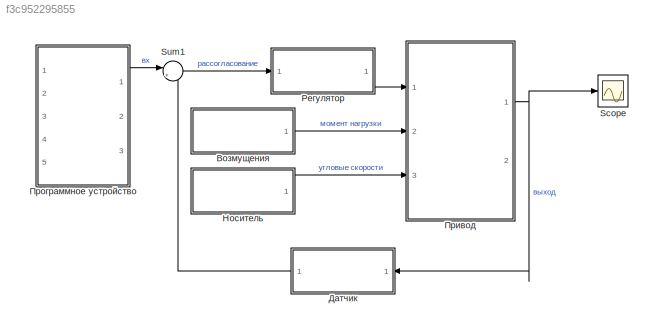
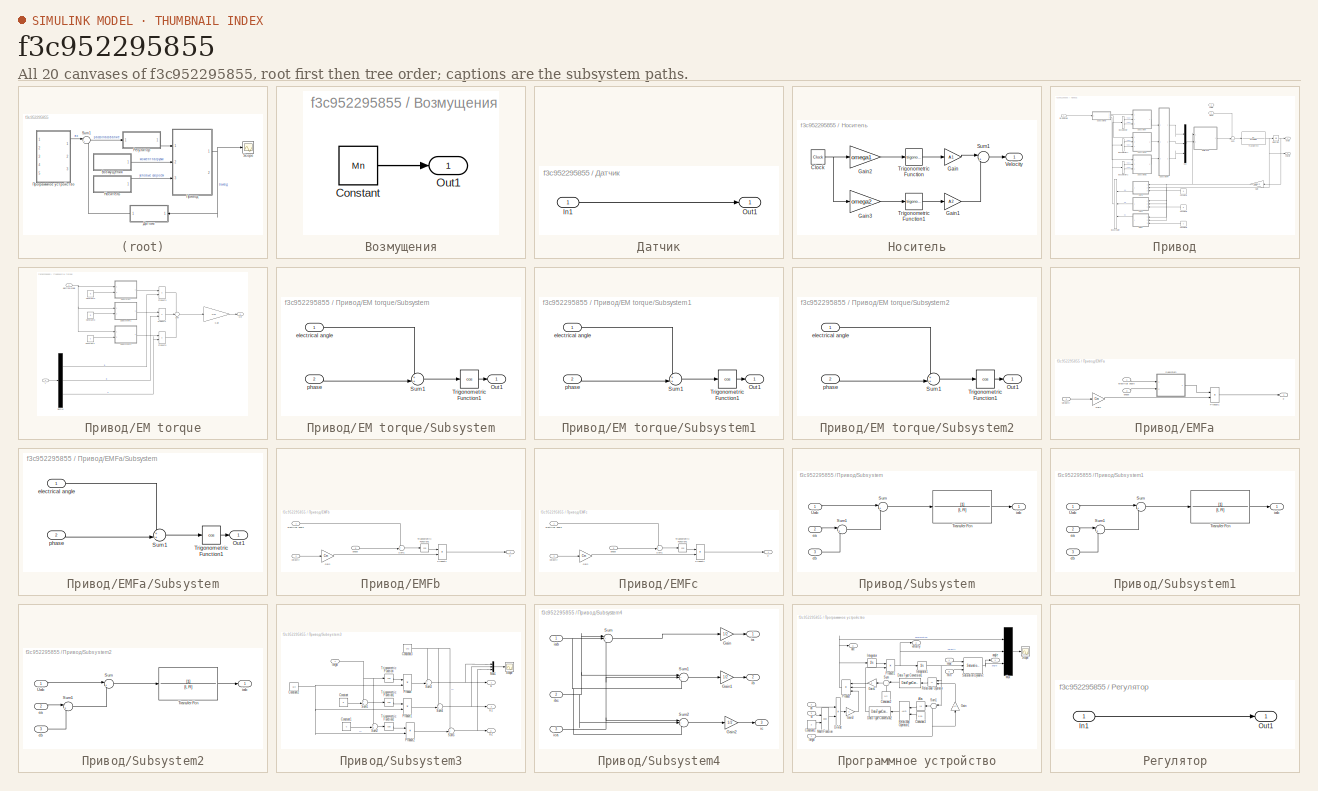
[diagram: thumbnail index - all 20 canvases of the model, root first then tree order]
MODEL slx_f3c952295855
KIND model
CONFIG AbsTol = auto
CONFIG EnableMultiTasking = off
CONFIG FixedStep = auto
CONFIG MaxStep = auto
CONFIG MinStep = auto
CONFIG RelTol = 1e-3
CONFIG SampleTimeConstraint = Unconstrained
CONFIG Solver = VariableStepAuto
CONFIG SolverName = VariableStepAuto
CONFIG StartTime = 0.0
CONFIG StopTime = 3
WORKSPACE source: MAT-file member
WORKSPACE A1 = 1
BLOCK [Scope] Scope
  Floating = off
  NumInputPorts = 1
  Ports = [1]
  ScopeSpecificationString = Simulink.scopes.TimeScopeBlockCfg('CurrentConfiguration', extmgr.ConfigurationSet(extmgr.Configuration('Core','General UI',true),extmgr.Configuration('Core','Source UI',true),extmgr.Configuration('Sources','WiredSimulink',true),extmgr.Configuration('Visuals','Time Domain',true,'SerializedDisplays',{struct('MinYLimReal','-87.42543','MaxYLimReal','179.91334','YLabelReal','','MinYLimMag','0.00000','M...<+1411ch>
BLOCK [Sum] Sum1
  IconShape = round
  InputSameDT = off
  Inputs = |+-
  OutDataTypeStr = Inherit: Inherit via internal rule
  Ports = [2, 1]
  SaturateOnIntegerOverflow = off
BLOCK [SubSystem] Возмущения
  Ports = [0, 1]
  RequestExecContextInheritance = off
BLOCK [Constant] Возмущения/Constant
  Value = Mn
BLOCK [Outport] Возмущения/Out1
  IconDisplay = Port number
BLOCK [SubSystem] Датчик
  Ports = [1, 1]
  RequestExecContextInheritance = off
BLOCK [Inport] Датчик/In1
  IconDisplay = Port number
BLOCK [Outport] Датчик/Out1
  IconDisplay = Port number
BLOCK [SubSystem] Носитель
  Ports = [0, 1]
  RequestExecContextInheritance = off
BLOCK [Clock] Носитель/Clock
BLOCK [Gain] Носитель/Gain
  Gain = A1
  OutDataTypeStr = Inherit: Inherit via internal rule
  ParamDataTypeStr = Inherit: Inherit via internal rule
  SaturateOnIntegerOverflow = off
BLOCK [Gain] Носитель/Gain1
  Gain = A2
  OutDataTypeStr = Inherit: Inherit via internal rule
  ParamDataTypeStr = Inherit: Inherit via internal rule
  SaturateOnIntegerOverflow = off
BLOCK [Gain] Носитель/Gain2
  Gain = omega1
  OutDataTypeStr = Inherit: Inherit via internal rule
  ParamDataTypeStr = Inherit: Inherit via internal rule
  SaturateOnIntegerOverflow = off
BLOCK [Gain] Носитель/Gain3
  Gain = omega2
  OutDataTypeStr = Inherit: Inherit via internal rule
  ParamDataTypeStr = Inherit: Inherit via internal rule
  SaturateOnIntegerOverflow = off
BLOCK [Sum] Носитель/Sum1
  IconShape = round
  InputSameDT = off
  Inputs = |++
  OutDataTypeStr = Inherit: Inherit via internal rule
  Ports = [2, 1]
  SaturateOnIntegerOverflow = off
BLOCK [Trigonometry] Носитель/Trigonometric Function
  Ports = [1, 1]
BLOCK [Trigonometry] Носитель/Trigonometric Function1
  Ports = [1, 1]
BLOCK [Outport] Носитель/Velocity
  IconDisplay = Port number
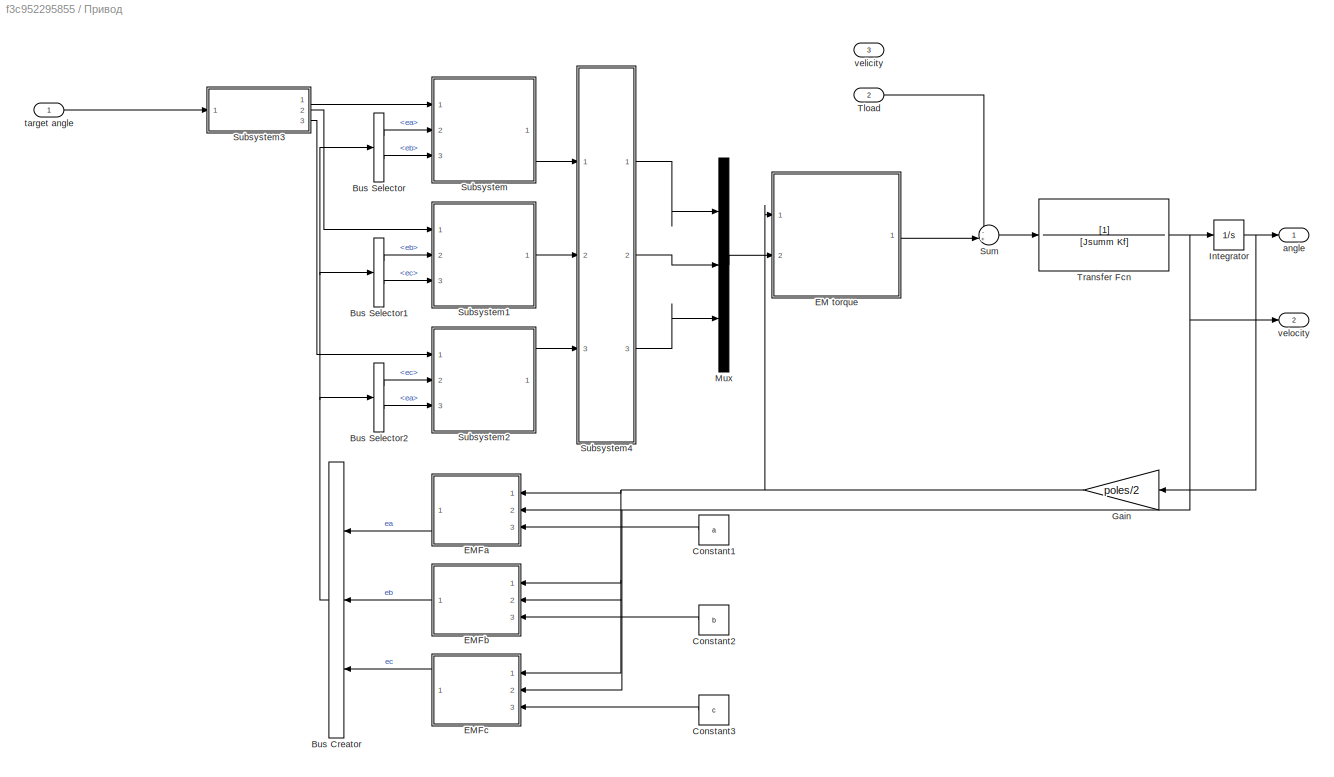
BLOCK [SubSystem] Привод
  Ports = [3, 2]
  RequestExecContextInheritance = off
BLOCK [BusCreator] Привод/Bus Creator
  DisplayOption = bar
  InheritFromInputs = on
  Inputs = 3
  Ports = [3, 1]
BLOCK [BusSelector] Привод/Bus Selector
  OutputAsBus = off
  OutputSignals = ea,eb
  Ports = [1, 2]
BLOCK [BusSelector] Привод/Bus Selector1
  OutputAsBus = off
  OutputSignals = eb,ec
  Ports = [1, 2]
BLOCK [BusSelector] Привод/Bus Selector2
  OutputAsBus = off
  OutputSignals = ec,ea
  Ports = [1, 2]
BLOCK [Constant] Привод/Constant1
  Value = a
BLOCK [Constant] Привод/Constant2
  Value = b
BLOCK [Constant] Привод/Constant3
  Value = c
BLOCK [SubSystem] Привод/EM torque
  Ports = [2, 1]
  RequestExecContextInheritance = off
BLOCK [Constant] Привод/EM torque/Constant2
  Value = a
BLOCK [Constant] Привод/EM torque/Constant3
  Value = b
BLOCK [Constant] Привод/EM torque/Constant4
  Value = c
BLOCK [Demux] Привод/EM torque/Demux
  DisplayOption = bar
  Outputs = 3
  Ports = [1, 3]
BLOCK [Gain] Привод/EM torque/Gain
  Gain = Cm
  OutDataTypeStr = Inherit: Inherit via internal rule
  ParamDataTypeStr = Inherit: Inherit via internal rule
  SaturateOnIntegerOverflow = off
BLOCK [Inport] Привод/EM torque/I
  IconDisplay = Port number
  Port = 2
BLOCK [Outport] Привод/EM torque/Me
  IconDisplay = Port number
BLOCK [Product] Привод/EM torque/Product3
  InputSameDT = off
  OutDataTypeStr = Inherit: Inherit via internal rule
  Ports = [2, 1]
  RndMeth = Floor
  SaturateOnIntegerOverflow = off
BLOCK [Product] Привод/EM torque/Product4
  InputSameDT = off
  OutDataTypeStr = Inherit: Inherit via internal rule
  Ports = [2, 1]
  RndMeth = Floor
  SaturateOnIntegerOverflow = off
BLOCK [Product] Привод/EM torque/Product5
  InputSameDT = off
  OutDataTypeStr = Inherit: Inherit via internal rule
  Ports = [2, 1]
  RndMeth = Floor
  SaturateOnIntegerOverflow = off
BLOCK [SubSystem] Привод/EM torque/Subsystem
  Ports = [2, 1]
  RequestExecContextInheritance = off
BLOCK [Outport] Привод/EM torque/Subsystem/Out1
  IconDisplay = Port number
BLOCK [Sum] Привод/EM torque/Subsystem/Sum1
  IconShape = round
  InputSameDT = off
  Inputs = ++|
  OutDataTypeStr = Inherit: Inherit via internal rule
  Ports = [2, 1]
  SaturateOnIntegerOverflow = off
BLOCK [Trigonometry] Привод/EM torque/Subsystem/Trigonometric Function1
  Operator = cos
  Ports = [1, 1]
BLOCK [Inport] Привод/EM torque/Subsystem/electrical angle
  IconDisplay = Port number
BLOCK [Inport] Привод/EM torque/Subsystem/phase
  IconDisplay = Port number
  Port = 2
BLOCK [SubSystem] Привод/EM torque/Subsystem1
  Ports = [2, 1]
  RequestExecContextInheritance = off
BLOCK [Outport] Привод/EM torque/Subsystem1/Out1
  IconDisplay = Port number
BLOCK [Sum] Привод/EM torque/Subsystem1/Sum1
  IconShape = round
  InputSameDT = off
  Inputs = ++|
  OutDataTypeStr = Inherit: Inherit via internal rule
  Ports = [2, 1]
  SaturateOnIntegerOverflow = off
BLOCK [Trigonometry] Привод/EM torque/Subsystem1/Trigonometric Function1
  Operator = cos
  Ports = [1, 1]
BLOCK [Inport] Привод/EM torque/Subsystem1/electrical angle
  IconDisplay = Port number
BLOCK [Inport] Привод/EM torque/Subsystem1/phase
  IconDisplay = Port number
  Port = 2
BLOCK [SubSystem] Привод/EM torque/Subsystem2
  Ports = [2, 1]
  RequestExecContextInheritance = off
BLOCK [Outport] Привод/EM torque/Subsystem2/Out1
  IconDisplay = Port number
BLOCK [Sum] Привод/EM torque/Subsystem2/Sum1
  IconShape = round
  InputSameDT = off
  Inputs = ++|
  OutDataTypeStr = Inherit: Inherit via internal rule
  Ports = [2, 1]
  SaturateOnIntegerOverflow = off
BLOCK [Trigonometry] Привод/EM torque/Subsystem2/Trigonometric Function1
  Operator = cos
  Ports = [1, 1]
BLOCK [Inport] Привод/EM torque/Subsystem2/electrical angle
  IconDisplay = Port number
BLOCK [Inport] Привод/EM torque/Subsystem2/phase
  IconDisplay = Port number
  Port = 2
BLOCK [Sum] Привод/EM torque/Sum
  IconShape = round
  InputSameDT = off
  Inputs = +++
  OutDataTypeStr = Inherit: Inherit via internal rule
  Ports = [3, 1]
  SaturateOnIntegerOverflow = off
BLOCK [Inport] Привод/EM torque/electrical angle
  IconDisplay = Port number
BLOCK [SubSystem] Привод/EMFa
  Ports = [3, 1]
  RequestExecContextInheritance = off
BLOCK [Gain] Привод/EMFa/Gain
  Gain = Cm
  OutDataTypeStr = Inherit: Inherit via internal rule
  ParamDataTypeStr = Inherit: Inherit via internal rule
  SaturateOnIntegerOverflow = off
BLOCK [Product] Привод/EMFa/Product1
  InputSameDT = off
  OutDataTypeStr = Inherit: Inherit via internal rule
  Ports = [2, 1]
  RndMeth = Floor
  SaturateOnIntegerOverflow = off
BLOCK [SubSystem] Привод/EMFa/Subsystem
  Ports = [2, 1]
  RequestExecContextInheritance = off
BLOCK [Outport] Привод/EMFa/Subsystem/Out1
  IconDisplay = Port number
BLOCK [Sum] Привод/EMFa/Subsystem/Sum1
  IconShape = round
  InputSameDT = off
  Inputs = ++|
  OutDataTypeStr = Inherit: Inherit via internal rule
  Ports = [2, 1]
  SaturateOnIntegerOverflow = off
BLOCK [Trigonometry] Привод/EMFa/Subsystem/Trigonometric Function1
  Operator = cos
  Ports = [1, 1]
BLOCK [Inport] Привод/EMFa/Subsystem/electrical angle
  IconDisplay = Port number
BLOCK [Inport] Привод/EMFa/Subsystem/phase
  IconDisplay = Port number
  Port = 2
BLOCK [Outport] Привод/EMFa/e
  IconDisplay = Port number
BLOCK [Inport] Привод/EMFa/electrical angle
  IconDisplay = Port number
BLOCK [Inport] Привод/EMFa/phase
  IconDisplay = Port number
  Port = 3
BLOCK [Inport] Привод/EMFa/velocity
  IconDisplay = Port number
  Port = 2
BLOCK [SubSystem] Привод/EMFb
  Ports = [3, 1]
  RequestExecContextInheritance = off
BLOCK [Gain] Привод/EMFb/Gain
  Gain = Cm
  OutDataTypeStr = Inherit: Inherit via internal rule
  ParamDataTypeStr = Inherit: Inherit via internal rule
  SaturateOnIntegerOverflow = off
BLOCK [Product] Привод/EMFb/Product1
  InputSameDT = off
  OutDataTypeStr = Inherit: Inherit via internal rule
  Ports = [2, 1]
  RndMeth = Floor
  SaturateOnIntegerOverflow = off
BLOCK [Sum] Привод/EMFb/Sum1
  IconShape = round
  InputSameDT = off
  Inputs = ++|
  OutDataTypeStr = Inherit: Inherit via internal rule
  Ports = [2, 1]
  SaturateOnIntegerOverflow = off
BLOCK [Trigonometry] Привод/EMFb/Trigonometric Function1
  Operator = cos
  Ports = [1, 1]
BLOCK [Outport] Привод/EMFb/e
  IconDisplay = Port number
BLOCK [Inport] Привод/EMFb/electrical angle
  IconDisplay = Port number
BLOCK [Inport] Привод/EMFb/phase
  IconDisplay = Port number
  Port = 3
BLOCK [Inport] Привод/EMFb/velocity
  IconDisplay = Port number
  Port = 2
BLOCK [SubSystem] Привод/EMFc
  Ports = [3, 1]
  RequestExecContextInheritance = off
BLOCK [Gain] Привод/EMFc/Gain
  Gain = Cm
  OutDataTypeStr = Inherit: Inherit via internal rule
  ParamDataTypeStr = Inherit: Inherit via internal rule
  SaturateOnIntegerOverflow = off
BLOCK [Product] Привод/EMFc/Product1
  InputSameDT = off
  OutDataTypeStr = Inherit: Inherit via internal rule
  Ports = [2, 1]
  RndMeth = Floor
  SaturateOnIntegerOverflow = off
BLOCK [Sum] Привод/EMFc/Sum1
  IconShape = round
  InputSameDT = off
  Inputs = ++|
  OutDataTypeStr = Inherit: Inherit via internal rule
  Ports = [2, 1]
  SaturateOnIntegerOverflow = off
BLOCK [Trigonometry] Привод/EMFc/Trigonometric Function1
  Operator = cos
  Ports = [1, 1]
BLOCK [Outport] Привод/EMFc/e
  IconDisplay = Port number
BLOCK [Inport] Привод/EMFc/electrical angle
  IconDisplay = Port number
BLOCK [Inport] Привод/EMFc/phase
  IconDisplay = Port number
  Port = 3
BLOCK [Inport] Привод/EMFc/velocity
  IconDisplay = Port number
  Port = 2
BLOCK [Gain] Привод/Gain
  Gain = poles/2
  OutDataTypeStr = Inherit: Inherit via internal rule
  ParamDataTypeStr = Inherit: Inherit via internal rule
  SaturateOnIntegerOverflow = off
BLOCK [Integrator] Привод/Integrator
  Ports = [1, 1]
BLOCK [Mux] Привод/Mux
  DisplayOption = bar
  Inputs = 3
  Ports = [3, 1]
BLOCK [SubSystem] Привод/Subsystem
  Ports = [3, 1]
  RequestExecContextInheritance = off
BLOCK [Sum] Привод/Subsystem/Sum
  IconShape = round
  InputSameDT = off
  Inputs = |+-
  OutDataTypeStr = Inherit: Inherit via internal rule
  Ports = [2, 1]
  SaturateOnIntegerOverflow = off
BLOCK [Sum] Привод/Subsystem/Sum1
  IconShape = round
  InputSameDT = off
  Inputs = |+-
  OutDataTypeStr = Inherit: Inherit via internal rule
  Ports = [2, 1]
  SaturateOnIntegerOverflow = off
BLOCK [TransferFcn] Привод/Subsystem/Transfer Fcn
  Denominator = [L R]
BLOCK [Inport] Привод/Subsystem/Uab
  IconDisplay = Port number
BLOCK [Inport] Привод/Subsystem/ea 
  IconDisplay = Port number
  Port = 2
BLOCK [Inport] Привод/Subsystem/eb
  IconDisplay = Port number
  Port = 3
BLOCK [Outport] Привод/Subsystem/iab
  IconDisplay = Port number
BLOCK [SubSystem] Привод/Subsystem1
  Ports = [3, 1]
  RequestExecContextInheritance = off
BLOCK [Sum] Привод/Subsystem1/Sum
  IconShape = round
  InputSameDT = off
  Inputs = |+-
  OutDataTypeStr = Inherit: Inherit via internal rule
  Ports = [2, 1]
  SaturateOnIntegerOverflow = off
BLOCK [Sum] Привод/Subsystem1/Sum1
  IconShape = round
  InputSameDT = off
  Inputs = |+-
  OutDataTypeStr = Inherit: Inherit via internal rule
  Ports = [2, 1]
  SaturateOnIntegerOverflow = off
BLOCK [TransferFcn] Привод/Subsystem1/Transfer Fcn
  Denominator = [L R]
BLOCK [Inport] Привод/Subsystem1/Uab
  IconDisplay = Port number
BLOCK [Inport] Привод/Subsystem1/ea 
  IconDisplay = Port number
  Port = 2
BLOCK [Inport] Привод/Subsystem1/eb
  IconDisplay = Port number
  Port = 3
BLOCK [Outport] Привод/Subsystem1/iab
  IconDisplay = Port number
BLOCK [SubSystem] Привод/Subsystem2
  Ports = [3, 1]
  RequestExecContextInheritance = off
BLOCK [Sum] Привод/Subsystem2/Sum
  IconShape = round
  InputSameDT = off
  Inputs = |+-
  OutDataTypeStr = Inherit: Inherit via internal rule
  Ports = [2, 1]
  SaturateOnIntegerOverflow = off
BLOCK [Sum] Привод/Subsystem2/Sum1
  IconShape = round
  InputSameDT = off
  Inputs = |+-
  OutDataTypeStr = Inherit: Inherit via internal rule
  Ports = [2, 1]
  SaturateOnIntegerOverflow = off
BLOCK [TransferFcn] Привод/Subsystem2/Transfer Fcn
  Denominator = [L R]
BLOCK [Inport] Привод/Subsystem2/Uab
  IconDisplay = Port number
BLOCK [Inport] Привод/Subsystem2/ea 
  IconDisplay = Port number
  Port = 2
BLOCK [Inport] Привод/Subsystem2/eb
  IconDisplay = Port number
  Port = 3
BLOCK [Outport] Привод/Subsystem2/iab
  IconDisplay = Port number
BLOCK [SubSystem] Привод/Subsystem3
  Ports = [1, 3]
  RequestExecContextInheritance = off
BLOCK [Constant] Привод/Subsystem3/Constant
  Value = b
BLOCK [Constant] Привод/Subsystem3/Constant1
  Value = c
BLOCK [Constant] Привод/Subsystem3/Constant2
  Value = U/2
BLOCK [Constant] Привод/Subsystem3/Constant3
  Value = U/2
BLOCK [Mux] Привод/Subsystem3/Mux1
  DisplayOption = bar
  Inputs = 3
  Ports = [3, 1]
BLOCK [Product] Привод/Subsystem3/Product
  InputSameDT = off
  OutDataTypeStr = Inherit: Inherit via internal rule
  Ports = [2, 1]
  RndMeth = Floor
  SaturateOnIntegerOverflow = off
BLOCK [Product] Привод/Subsystem3/Product1
  InputSameDT = off
  OutDataTypeStr = Inherit: Inherit via internal rule
  Ports = [2, 1]
  RndMeth = Floor
  SaturateOnIntegerOverflow = off
BLOCK [Product] Привод/Subsystem3/Product2
  InputSameDT = off
  OutDataTypeStr = Inherit: Inherit via internal rule
  Ports = [2, 1]
  RndMeth = Floor
  SaturateOnIntegerOverflow = off
BLOCK [Scope] Привод/Subsystem3/Scope
  Floating = off
  NumInputPorts = 1
  Ports = [1]
  ScopeSpecificationString = Simulink.scopes.TimeScopeBlockCfg('CurrentConfiguration', extmgr.ConfigurationSet(extmgr.Configuration('Core','General UI',true),extmgr.Configuration('Core','Source UI',true),extmgr.Configuration('Sources','WiredSimulink',true,'DataLoggingVariableName','ScopeData1'),extmgr.Configuration('Visuals','Time Domain',true,'SerializedDisplays',{struct('MinYLimReal','-0.25','MaxYLimReal','2.25','YLabelReal...<+1435ch>
BLOCK [Sum] Привод/Subsystem3/Sum1
  IconShape = round
  InputSameDT = off
  Inputs = ++|
  OutDataTypeStr = Inherit: Inherit via internal rule
  Ports = [2, 1]
  SaturateOnIntegerOverflow = off
BLOCK [Sum] Привод/Subsystem3/Sum2
  IconShape = round
  InputSameDT = off
  Inputs = ++|
  OutDataTypeStr = Inherit: Inherit via internal rule
  Ports = [2, 1]
  SaturateOnIntegerOverflow = off
BLOCK [Sum] Привод/Subsystem3/Sum3
  IconShape = round
  InputSameDT = off
  Inputs = ++|
  OutDataTypeStr = Inherit: Inherit via internal rule
  Ports = [2, 1]
  SaturateOnIntegerOverflow = off
BLOCK [Sum] Привод/Subsystem3/Sum4
  IconShape = round
  InputSameDT = off
  Inputs = ++|
  OutDataTypeStr = Inherit: Inherit via internal rule
  Ports = [2, 1]
  SaturateOnIntegerOverflow = off
BLOCK [Sum] Привод/Subsystem3/Sum5
  IconShape = round
  InputSameDT = off
  Inputs = ++|
  OutDataTypeStr = Inherit: Inherit via internal rule
  Ports = [2, 1]
  SaturateOnIntegerOverflow = off
BLOCK [Trigonometry] Привод/Subsystem3/Trigonometric Function
  Operator = cos
  Ports = [1, 1]
BLOCK [Trigonometry] Привод/Subsystem3/Trigonometric Function1
  Operator = cos
  Ports = [1, 1]
BLOCK [Trigonometry] Привод/Subsystem3/Trigonometric Function2
  Operator = cos
  Ports = [1, 1]
BLOCK [Inport] Привод/Subsystem3/target
  IconDisplay = Port number
BLOCK [Outport] Привод/Subsystem3/u 
  IconDisplay = Port number
BLOCK [Outport] Привод/Subsystem3/u 1
  IconDisplay = Port number
  Port = 2
BLOCK [Outport] Привод/Subsystem3/u 2
  IconDisplay = Port number
  Port = 3
BLOCK [SubSystem] Привод/Subsystem4
  Ports = [3, 3]
  RequestExecContextInheritance = off
BLOCK [Gain] Привод/Subsystem4/Gain
  Gain = 1/2
  OutDataTypeStr = Inherit: Inherit via internal rule
  ParamDataTypeStr = Inherit: Inherit via internal rule
  SaturateOnIntegerOverflow = off
BLOCK [Gain] Привод/Subsystem4/Gain1
  Gain = 1/2
  OutDataTypeStr = Inherit: Inherit via internal rule
  ParamDataTypeStr = Inherit: Inherit via internal rule
  SaturateOnIntegerOverflow = off
BLOCK [Gain] Привод/Subsystem4/Gain2
  Gain = 1/2
  OutDataTypeStr = Inherit: Inherit via internal rule
  ParamDataTypeStr = Inherit: Inherit via internal rule
  SaturateOnIntegerOverflow = off
BLOCK [Sum] Привод/Subsystem4/Sum
  IconShape = round
  InputSameDT = off
  Inputs = |+--
  OutDataTypeStr = Inherit: Inherit via internal rule
  Ports = [3, 1]
  SaturateOnIntegerOverflow = off
BLOCK [Sum] Привод/Subsystem4/Sum1
  IconShape = round
  InputSameDT = off
  Inputs = |+--
  OutDataTypeStr = Inherit: Inherit via internal rule
  Ports = [3, 1]
  SaturateOnIntegerOverflow = off
BLOCK [Sum] Привод/Subsystem4/Sum2
  IconShape = round
  InputSameDT = off
  Inputs = |+--
  OutDataTypeStr = Inherit: Inherit via internal rule
  Ports = [3, 1]
  SaturateOnIntegerOverflow = off
BLOCK [Outport] Привод/Subsystem4/ia
  IconDisplay = Port number
BLOCK [Inport] Привод/Subsystem4/iab
  IconDisplay = Port number
BLOCK [Outport] Привод/Subsystem4/ib
  IconDisplay = Port number
  Port = 2
BLOCK [Inport] Привод/Subsystem4/ibc 
  IconDisplay = Port number
  Port = 2
BLOCK [Outport] Привод/Subsystem4/ic
  IconDisplay = Port number
  Port = 3
BLOCK [Inport] Привод/Subsystem4/ica
  IconDisplay = Port number
  Port = 3
BLOCK [Sum] Привод/Sum
  IconShape = round
  InputSameDT = off
  Inputs = -+|
  OutDataTypeStr = Inherit: Inherit via internal rule
  Ports = [2, 1]
  SaturateOnIntegerOverflow = off
BLOCK [Inport] Привод/Tload
  IconDisplay = Port number
  Port = 2
BLOCK [TransferFcn] Привод/Transfer Fcn
  Denominator = [Jsumm Kf]
BLOCK [Outport] Привод/angle
  IconDisplay = Port number
BLOCK [Inport] Привод/target angle
  IconDisplay = Port number
BLOCK [Inport] Привод/velicity
  IconDisplay = Port number
  Port = 3
BLOCK [Outport] Привод/velocity
  IconDisplay = Port number
  Port = 2
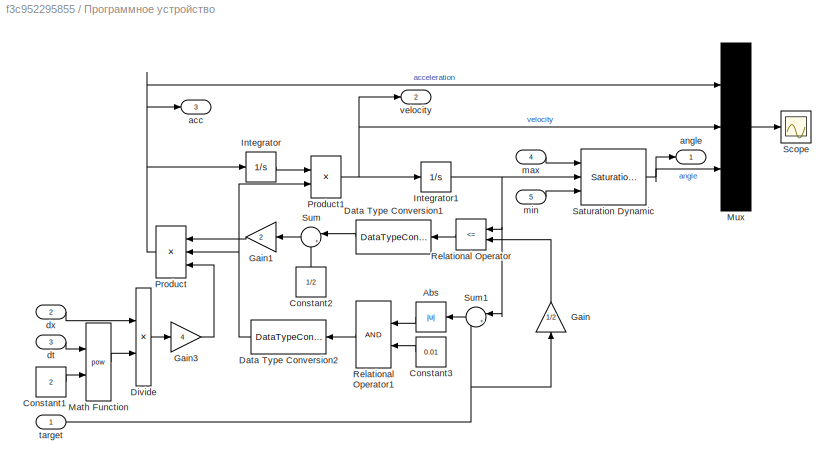
BLOCK [SubSystem] Программное устройство
  Ports = [5, 3]
  RequestExecContextInheritance = off
BLOCK [Abs] Программное устройство/Abs
  SaturateOnIntegerOverflow = off
BLOCK [Constant] Программное устройство/Constant1
  Value = 2
BLOCK [Constant] Программное устройство/Constant2
  Value = 1/2
BLOCK [Constant] Программное устройство/Constant3
  Value = 0.01
BLOCK [DataTypeConversion] Программное устройство/Data Type Conversion1
  RndMeth = Floor
  SaturateOnIntegerOverflow = off
BLOCK [DataTypeConversion] Программное устройство/Data Type Conversion2
  RndMeth = Floor
  SaturateOnIntegerOverflow = off
BLOCK [Product] Программное устройство/Divide
  InputSameDT = off
  Inputs = */
  OutDataTypeStr = Inherit: Inherit via internal rule
  Ports = [2, 1]
  RndMeth = Floor
  SaturateOnIntegerOverflow = off
BLOCK [Gain] Программное устройство/Gain
  Gain = 1/2
  OutDataTypeStr = Inherit: Inherit via internal rule
  ParamDataTypeStr = Inherit: Inherit via internal rule
  SaturateOnIntegerOverflow = off
BLOCK [Gain] Программное устройство/Gain1
  Gain = 2
  OutDataTypeStr = Inherit: Inherit via internal rule
  ParamDataTypeStr = Inherit: Inherit via internal rule
  SaturateOnIntegerOverflow = off
BLOCK [Gain] Программное устройство/Gain3
  Gain = 4
  OutDataTypeStr = Inherit: Inherit via internal rule
  ParamDataTypeStr = Inherit: Inherit via internal rule
  SaturateOnIntegerOverflow = off
BLOCK [Integrator] Программное устройство/Integrator
  Ports = [1, 1]
BLOCK [Integrator] Программное устройство/Integrator1
  Ports = [1, 1]
BLOCK [Math] Программное устройство/Math Function
  Operator = pow
  Ports = [2, 1]
BLOCK [Mux] Программное устройство/Mux
  DisplayOption = bar
  Inputs = 3
  Ports = [3, 1]
BLOCK [Product] Программное устройство/Product
  InputSameDT = off
  Inputs = 3
  OutDataTypeStr = Inherit: Inherit via internal rule
  Ports = [3, 1]
  RndMeth = Floor
  SaturateOnIntegerOverflow = off
BLOCK [Product] Программное устройство/Product1
  InputSameDT = off
  OutDataTypeStr = Inherit: Inherit via internal rule
  Ports = [2, 1]
  RndMeth = Floor
  SaturateOnIntegerOverflow = off
BLOCK [RelationalOperator] Программное устройство/Relational Operator
  InputSameDT = off
  Operator = <=
  OutDataTypeStr = boolean
  Ports = [2, 1]
  RndMeth = Simplest
BLOCK [RelationalOperator] Программное устройство/Relational Operator1
  InputSameDT = off
  OutDataTypeStr = boolean
  Ports = [2, 1]
  RndMeth = Simplest
BLOCK [Reference] Программное устройство/Saturation Dynamic  REF=simulink/Discontinuities/Saturation
Dynamic
  Ports = [3, 1]
  SourceBlock = simulink/Discontinuities/Saturation\nDynamic
  SourceProductBaseCode = SL
  SourceProductName = Simulink
  SourceType = Saturation Dynamic
BLOCK [Scope] Программное устройство/Scope
  Floating = off
  NumInputPorts = 1
  Ports = [1]
  ScopeSpecificationString = Simulink.scopes.TimeScopeBlockCfg('CurrentConfiguration', extmgr.ConfigurationSet(extmgr.Configuration('Core','General UI',true,'FigureColor',[0 0 0]),extmgr.Configuration('Core','Source UI',true),extmgr.Configuration('Sources','WiredSimulink',true,'DataLoggingVariableName','ScopeData1'),extmgr.Configuration('Visuals','Time Domain',true,'SerializedDisplays',{struct('MinYLimReal','-1250.00000','Max...<+1621ch>
BLOCK [Sum] Программное устройство/Sum
  IconShape = round
  InputSameDT = off
  Inputs = |+-
  OutDataTypeStr = Inherit: Inherit via internal rule
  Ports = [2, 1]
  SaturateOnIntegerOverflow = off
BLOCK [Sum] Программное устройство/Sum1
  IconShape = round
  InputSameDT = off
  Inputs = |+-
  OutDataTypeStr = Inherit: Inherit via internal rule
  Ports = [2, 1]
  SaturateOnIntegerOverflow = off
BLOCK [Outport] Программное устройство/acc
  IconDisplay = Port number
  Port = 3
BLOCK [Outport] Программное устройство/angle
  IconDisplay = Port number
BLOCK [Inport] Программное устройство/dt
  IconDisplay = Port number
  Port = 3
BLOCK [Inport] Программное устройство/dx 
  IconDisplay = Port number
  Port = 2
BLOCK [Inport] Программное устройство/max
  IconDisplay = Port number
  Port = 4
BLOCK [Inport] Программное устройство/min
  IconDisplay = Port number
  Port = 5
BLOCK [Inport] Программное устройство/target
  IconDisplay = Port number
BLOCK [Outport] Программное устройство/velocity
  IconDisplay = Port number
  Port = 2
BLOCK [SubSystem] Регулятор
  Ports = [1, 1]
  RequestExecContextInheritance = off
BLOCK [Inport] Регулятор/In1
  IconDisplay = Port number
BLOCK [Outport] Регулятор/Out1
  IconDisplay = Port number
LINE Sum1:1 -> Регулятор:1
LINE Возмущения/Constant:1 -> Возмущения/Out1:1
LINE Возмущения:1 -> Привод:2
LINE Датчик/In1:1 -> Датчик/Out1:1
LINE Датчик:1 -> Sum1:2
NET Носитель/Clock:1 -> Носитель/Gain2:1, Носитель/Gain3:1
LINE Носитель/Gain1:1 -> Носитель/Sum1:2
LINE Носитель/Gain2:1 -> Носитель/Trigonometric Function:1
LINE Носитель/Gain3:1 -> Носитель/Trigonometric Function1:1
LINE Носитель/Gain:1 -> Носитель/Sum1:1
LINE Носитель/Sum1:1 -> Носитель/Velocity:1
LINE Носитель/Trigonometric Function1:1 -> Носитель/Gain1:1
LINE Носитель/Trigonometric Function:1 -> Носитель/Gain:1
LINE Носитель:1 -> Привод:3
NET Привод/Bus Creator:1 -> Привод/Bus Selector1:1, Привод/Bus Selector2:1, Привод/Bus Selector:1
LINE Привод/Bus Selector1:1 -> Привод/Subsystem1:2
LINE Привод/Bus Selector1:2 -> Привод/Subsystem1:3
LINE Привод/Bus Selector2:1 -> Привод/Subsystem2:2
LINE Привод/Bus Selector2:2 -> Привод/Subsystem2:3
LINE Привод/Bus Selector:1 -> Привод/Subsystem:2
LINE Привод/Bus Selector:2 -> Привод/Subsystem:3
LINE Привод/Constant1:1 -> Привод/EMFa:3
LINE Привод/Constant2:1 -> Привод/EMFb:3
LINE Привод/Constant3:1 -> Привод/EMFc:3
LINE Привод/EM torque/Constant2:1 -> Привод/EM torque/Subsystem:2
LINE Привод/EM torque/Constant3:1 -> Привод/EM torque/Subsystem1:2
LINE Привод/EM torque/Constant4:1 -> Привод/EM torque/Subsystem2:2
LINE Привод/EM torque/Demux:1 -> Привод/EM torque/Product3:2
LINE Привод/EM torque/Demux:2 -> Привод/EM torque/Product4:2
LINE Привод/EM torque/Demux:3 -> Привод/EM torque/Product5:2
LINE Привод/EM torque/Gain:1 -> Привод/EM torque/Me:1
LINE Привод/EM torque/I:1 -> Привод/EM torque/Demux:1
LINE Привод/EM torque/Product3:1 -> Привод/EM torque/Sum:1
LINE Привод/EM torque/Product4:1 -> Привод/EM torque/Sum:2
LINE Привод/EM torque/Product5:1 -> Привод/EM torque/Sum:3
LINE Привод/EM torque/Subsystem/Sum1:1 -> Привод/EM torque/Subsystem/Trigonometric Function1:1
LINE Привод/EM torque/Subsystem/Trigonometric Function1:1 -> Привод/EM torque/Subsystem/Out1:1
LINE Привод/EM torque/Subsystem/electrical angle:1 -> Привод/EM torque/Subsystem/Sum1:1
LINE Привод/EM torque/Subsystem/phase:1 -> Привод/EM torque/Subsystem/Sum1:2
LINE Привод/EM torque/Subsystem1/Sum1:1 -> Привод/EM torque/Subsystem1/Trigonometric Function1:1
LINE Привод/EM torque/Subsystem1/Trigonometric Function1:1 -> Привод/EM torque/Subsystem1/Out1:1
LINE Привод/EM torque/Subsystem1/electrical angle:1 -> Привод/EM torque/Subsystem1/Sum1:1
LINE Привод/EM torque/Subsystem1/phase:1 -> Привод/EM torque/Subsystem1/Sum1:2
LINE Привод/EM torque/Subsystem1:1 -> Привод/EM torque/Product4:1
LINE Привод/EM torque/Subsystem2/Sum1:1 -> Привод/EM torque/Subsystem2/Trigonometric Function1:1
LINE Привод/EM torque/Subsystem2/Trigonometric Function1:1 -> Привод/EM torque/Subsystem2/Out1:1
LINE Привод/EM torque/Subsystem2/electrical angle:1 -> Привод/EM torque/Subsystem2/Sum1:1
LINE Привод/EM torque/Subsystem2/phase:1 -> Привод/EM torque/Subsystem2/Sum1:2
LINE Привод/EM torque/Subsystem2:1 -> Привод/EM torque/Product5:1
LINE Привод/EM torque/Subsystem:1 -> Привод/EM torque/Product3:1
LINE Привод/EM torque/Sum:1 -> Привод/EM torque/Gain:1
NET Привод/EM torque/electrical angle:1 -> Привод/EM torque/Subsystem1:1, Привод/EM torque/Subsystem2:1, Привод/EM torque/Subsystem:1
LINE Привод/EM torque:1 -> Привод/Sum:2
LINE Привод/EMFa/Gain:1 -> Привод/EMFa/Product1:2
LINE Привод/EMFa/Product1:1 -> Привод/EMFa/e:1
LINE Привод/EMFa/Subsystem/Sum1:1 -> Привод/EMFa/Subsystem/Trigonometric Function1:1
LINE Привод/EMFa/Subsystem/Trigonometric Function1:1 -> Привод/EMFa/Subsystem/Out1:1
LINE Привод/EMFa/Subsystem/electrical angle:1 -> Привод/EMFa/Subsystem/Sum1:1
LINE Привод/EMFa/Subsystem/phase:1 -> Привод/EMFa/Subsystem/Sum1:2
LINE Привод/EMFa/Subsystem:1 -> Привод/EMFa/Product1:1
LINE Привод/EMFa/electrical angle:1 -> Привод/EMFa/Subsystem:1
LINE Привод/EMFa/phase:1 -> Привод/EMFa/Subsystem:2
LINE Привод/EMFa/velocity:1 -> Привод/EMFa/Gain:1
LINE Привод/EMFa:1 -> Привод/Bus Creator:1
LINE Привод/EMFb/Gain:1 -> Привод/EMFb/Product1:2
LINE Привод/EMFb/Product1:1 -> Привод/EMFb/e:1
LINE Привод/EMFb/Sum1:1 -> Привод/EMFb/Trigonometric Function1:1
LINE Привод/EMFb/Trigonometric Function1:1 -> Привод/EMFb/Product1:1
LINE Привод/EMFb/electrical angle:1 -> Привод/EMFb/Sum1:1
LINE Привод/EMFb/phase:1 -> Привод/EMFb/Sum1:2
LINE Привод/EMFb/velocity:1 -> Привод/EMFb/Gain:1
LINE Привод/EMFb:1 -> Привод/Bus Creator:2
LINE Привод/EMFc/Gain:1 -> Привод/EMFc/Product1:2
LINE Привод/EMFc/Product1:1 -> Привод/EMFc/e:1
LINE Привод/EMFc/Sum1:1 -> Привод/EMFc/Trigonometric Function1:1
LINE Привод/EMFc/Trigonometric Function1:1 -> Привод/EMFc/Product1:1
LINE Привод/EMFc/electrical angle:1 -> Привод/EMFc/Sum1:1
LINE Привод/EMFc/phase:1 -> Привод/EMFc/Sum1:2
LINE Привод/EMFc/velocity:1 -> Привод/EMFc/Gain:1
LINE Привод/EMFc:1 -> Привод/Bus Creator:3
NET Привод/Gain:1 -> Привод/EM torque:1, Привод/EMFa:1, Привод/EMFb:1, Привод/EMFc:1
NET Привод/Integrator:1 -> Привод/Gain:1, Привод/angle:1
LINE Привод/Mux:1 -> Привод/EM torque:2
LINE Привод/Subsystem/Sum1:1 -> Привод/Subsystem/Sum:2
LINE Привод/Subsystem/Sum:1 -> Привод/Subsystem/Transfer Fcn:1
LINE Привод/Subsystem/Transfer Fcn:1 -> Привод/Subsystem/iab:1
LINE Привод/Subsystem/Uab:1 -> Привод/Subsystem/Sum:1
LINE Привод/Subsystem/ea :1 -> Привод/Subsystem/Sum1:1
LINE Привод/Subsystem/eb:1 -> Привод/Subsystem/Sum1:2
LINE Привод/Subsystem1/Sum1:1 -> Привод/Subsystem1/Sum:2
LINE Привод/Subsystem1/Sum:1 -> Привод/Subsystem1/Transfer Fcn:1
LINE Привод/Subsystem1/Transfer Fcn:1 -> Привод/Subsystem1/iab:1
LINE Привод/Subsystem1/Uab:1 -> Привод/Subsystem1/Sum:1
LINE Привод/Subsystem1/ea :1 -> Привод/Subsystem1/Sum1:1
LINE Привод/Subsystem1/eb:1 -> Привод/Subsystem1/Sum1:2
LINE Привод/Subsystem1:1 -> Привод/Subsystem4:2
LINE Привод/Subsystem2/Sum1:1 -> Привод/Subsystem2/Sum:2
LINE Привод/Subsystem2/Sum:1 -> Привод/Subsystem2/Transfer Fcn:1
LINE Привод/Subsystem2/Transfer Fcn:1 -> Привод/Subsystem2/iab:1
LINE Привод/Subsystem2/Uab:1 -> Привод/Subsystem2/Sum:1
LINE Привод/Subsystem2/ea :1 -> Привод/Subsystem2/Sum1:1
LINE Привод/Subsystem2/eb:1 -> Привод/Subsystem2/Sum1:2
LINE Привод/Subsystem2:1 -> Привод/Subsystem4:3
LINE Привод/Subsystem3/Constant1:1 -> Привод/Subsystem3/Sum2:2
NET Привод/Subsystem3/Constant2:1 -> Привод/Subsystem3/Product1:2, Привод/Subsystem3/Product2:2, Привод/Subsystem3/Product:2
NET Привод/Subsystem3/Constant3:1 -> Привод/Subsystem3/Sum3:1, Привод/Subsystem3/Sum4:1, Привод/Subsystem3/Sum5:1
LINE Привод/Subsystem3/Constant:1 -> Привод/Subsystem3/Sum1:2
LINE Привод/Subsystem3/Mux1:1 -> Привод/Subsystem3/Scope:1
LINE Привод/Subsystem3/Product1:1 -> Привод/Subsystem3/Sum4:2
LINE Привод/Subsystem3/Product2:1 -> Привод/Subsystem3/Sum5:2
LINE Привод/Subsystem3/Product:1 -> Привод/Subsystem3/Sum3:2
LINE Привод/Subsystem3/Sum1:1 -> Привод/Subsystem3/Trigonometric Function1:1
LINE Привод/Subsystem3/Sum2:1 -> Привод/Subsystem3/Trigonometric Function2:1
NET Привод/Subsystem3/Sum3:1 -> Привод/Subsystem3/Mux1:1, Привод/Subsystem3/u :1
NET Привод/Subsystem3/Sum4:1 -> Привод/Subsystem3/Mux1:2, Привод/Subsystem3/u 1:1
NET Привод/Subsystem3/Sum5:1 -> Привод/Subsystem3/Mux1:3, Привод/Subsystem3/u 2:1
LINE Привод/Subsystem3/Trigonometric Function1:1 -> Привод/Subsystem3/Product1:1
LINE Привод/Subsystem3/Trigonometric Function2:1 -> Привод/Subsystem3/Product2:1
LINE Привод/Subsystem3/Trigonometric Function:1 -> Привод/Subsystem3/Product:1
NET Привод/Subsystem3/target:1 -> Привод/Subsystem3/Sum1:1, Привод/Subsystem3/Sum2:1, Привод/Subsystem3/Trigonometric Function:1
LINE Привод/Subsystem3:1 -> Привод/Subsystem:1
LINE Привод/Subsystem3:2 -> Привод/Subsystem1:1
LINE Привод/Subsystem3:3 -> Привод/Subsystem2:1
LINE Привод/Subsystem4/Gain1:1 -> Привод/Subsystem4/ib:1
LINE Привод/Subsystem4/Gain2:1 -> Привод/Subsystem4/ic:1
LINE Привод/Subsystem4/Gain:1 -> Привод/Subsystem4/ia:1
LINE Привод/Subsystem4/Sum1:1 -> Привод/Subsystem4/Gain1:1
LINE Привод/Subsystem4/Sum2:1 -> Привод/Subsystem4/Gain2:1
LINE Привод/Subsystem4/Sum:1 -> Привод/Subsystem4/Gain:1
NET Привод/Subsystem4/iab:1 -> Привод/Subsystem4/Sum1:3, Привод/Subsystem4/Sum2:3, Привод/Subsystem4/Sum:1
NET Привод/Subsystem4/ibc :1 -> Привод/Subsystem4/Sum1:1, Привод/Subsystem4/Sum2:2, Привод/Subsystem4/Sum:2
NET Привод/Subsystem4/ica:1 -> Привод/Subsystem4/Sum1:2, Привод/Subsystem4/Sum2:1, Привод/Subsystem4/Sum:3
LINE Привод/Subsystem4:1 -> Привод/Mux:1
LINE Привод/Subsystem4:2 -> Привод/Mux:2
LINE Привод/Subsystem4:3 -> Привод/Mux:3
LINE Привод/Subsystem:1 -> Привод/Subsystem4:1
LINE Привод/Sum:1 -> Привод/Transfer Fcn:1
LINE Привод/Tload:1 -> Привод/Sum:1
NET Привод/Transfer Fcn:1 -> Привод/EMFa:2, Привод/EMFb:2, Привод/EMFc:2, Привод/Integrator:1, Привод/velocity:1
LINE Привод/target angle:1 -> Привод/Subsystem3:1
NET Привод:1 -> Scope:1, Датчик:1
LINE Программное устройство/Abs:1 -> Программное устройство/Relational Operator1:1
LINE Программное устройство/Constant1:1 -> Программное устройство/Math Function:2
LINE Программное устройство/Constant2:1 -> Программное устройство/Sum:2
LINE Программное устройство/Constant3:1 -> Программное устройство/Relational Operator1:2
LINE Программное устройство/Data Type Conversion1:1 -> Программное устройство/Sum:1
NET Программное устройство/Data Type Conversion2:1 -> Программное устройство/Product1:2, Программное устройство/Product:2
LINE Программное устройство/Divide:1 -> Программное устройство/Gain3:1
LINE Программное устройство/Gain1:1 -> Программное устройство/Product:1
LINE Программное устройство/Gain3:1 -> Программное устройство/Product:3
LINE Программное устройство/Gain:1 -> Программное устройство/Relational Operator:2
NET Программное устройство/Integrator1:1 -> Программное устройство/Relational Operator:1, Программное устройство/Saturation Dynamic:2, Программное устройство/Sum1:1
LINE Программное устройство/Integrator:1 -> Программное устройство/Product1:1
LINE Программное устройство/Math Function:1 -> Программное устройство/Divide:2
LINE Программное устройство/Mux:1 -> Программное устройство/Scope:1
NET Программное устройство/Product1:1 -> Программное устройство/Integrator1:1, Программное устройство/Mux:2, Программное устройство/velocity:1
NET Программное устройство/Product:1 -> Программное устройство/Integrator:1, Программное устройство/Mux:1, Программное устройство/acc:1
LINE Программное устройство/Relational Operator1:1 -> Программное устройство/Data Type Conversion2:1
LINE Программное устройство/Relational Operator:1 -> Программное устройство/Data Type Conversion1:1
NET Программное устройство/Saturation Dynamic:1 -> Программное устройство/Mux:3, Программное устройство/angle:1
LINE Программное устройство/Sum1:1 -> Программное устройство/Abs:1
LINE Программное устройство/Sum:1 -> Программное устройство/Gain1:1
LINE Программное устройство/dt:1 -> Программное устройство/Math Function:1
LINE Программное устройство/dx :1 -> Программное устройство/Divide:1
LINE Программное устройство/max:1 -> Программное устройство/Saturation Dynamic:1
LINE Программное устройство/min:1 -> Программное устройство/Saturation Dynamic:3
NET Программное устройство/target:1 -> Программное устройство/Gain:1, Программное устройство/Sum1:2
LINE Программное устройство:1 -> Sum1:1
LINE Регулятор/In1:1 -> Регулятор/Out1:1
LINE Регулятор:1 -> Привод:1
note: NET lines group one-source signal fan-out (src -> all destinations, sorted); 1:1 wires keep LINE
